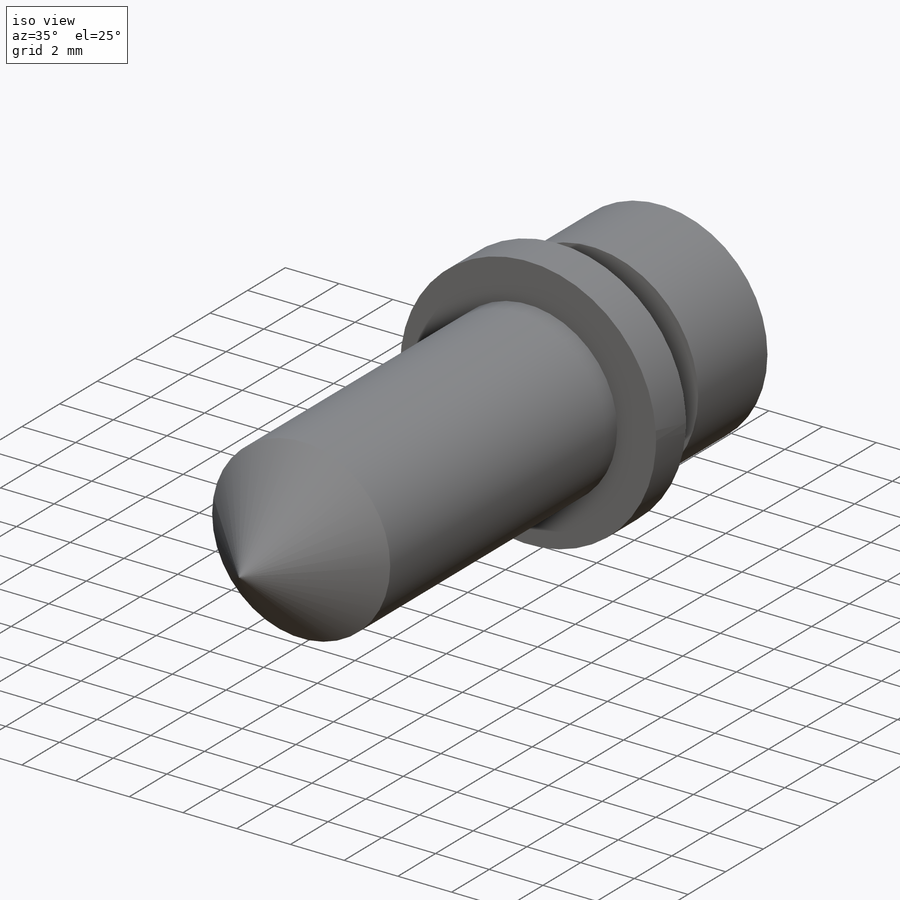
[diagram: iso view]
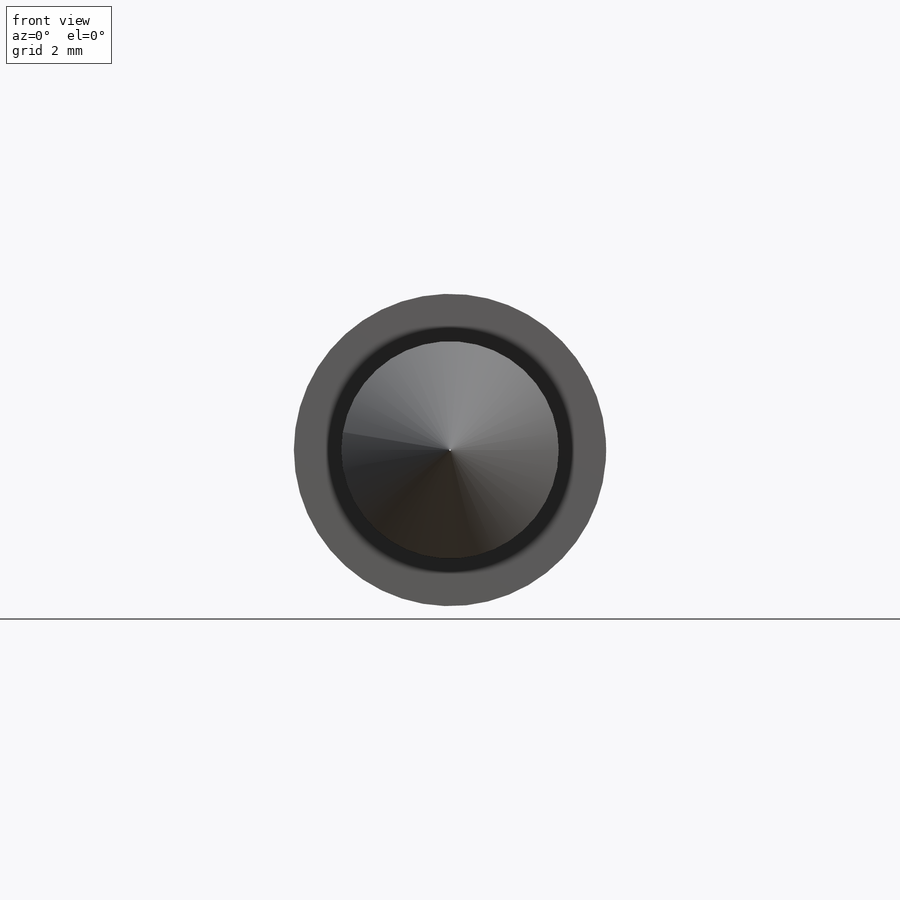
[diagram: front view]
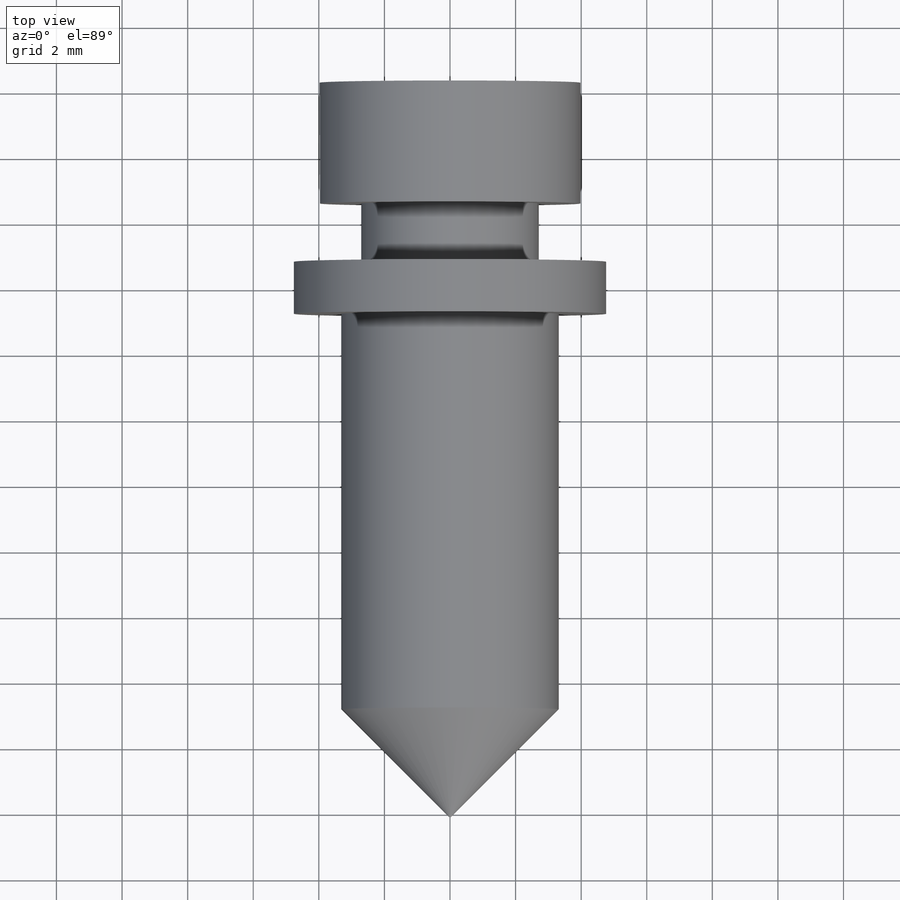
[diagram: top view]
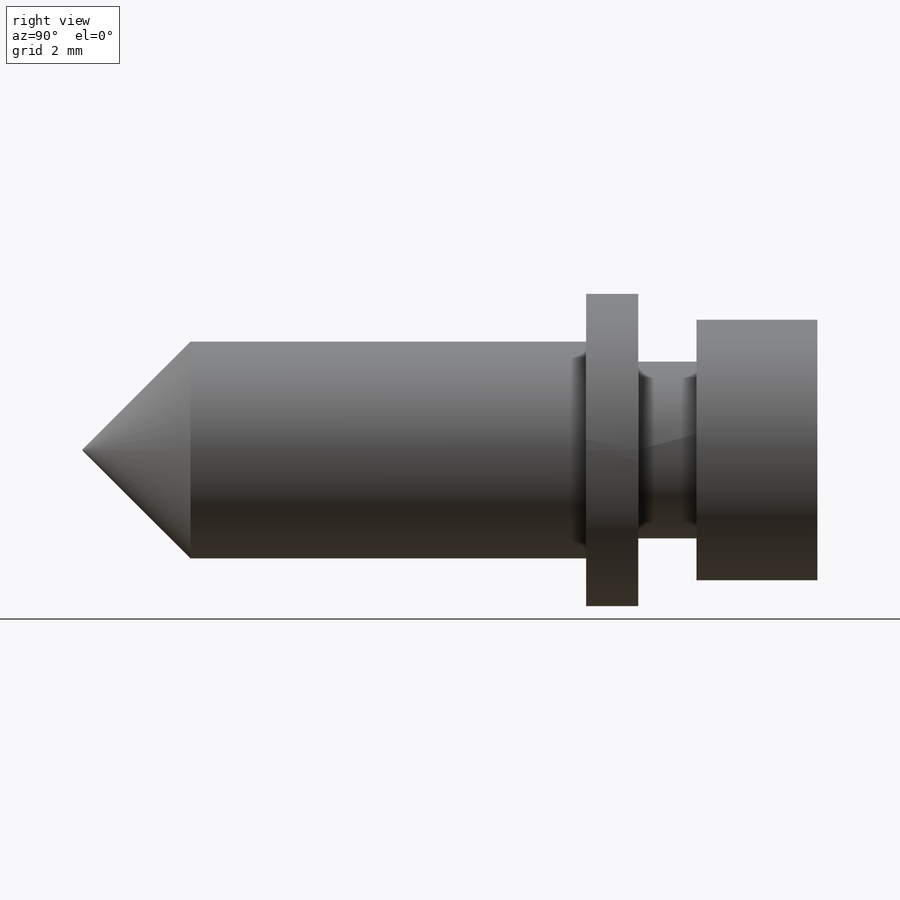
[diagram: right view]
SOLIDWORKS PART (.sldprt)
format: sldprt  version: not decoded by parser v0  size: 242,176 bytes
history: native  units: mm
features: sketch x9, extrude x3, cut_extrude x3, material x1, revolve x1, cut_revolve x1, plane x1, chamfer x1 (+11 scaffold rows collapsed)
feature tree (31):
  scaffold x11  (default folders/planes/origin — collapsed)
  material  "Brass"
  sketch  "Sketch1"  dims[D1=9.525mm]
  extrude  "Boss-Extrude1"  Depth=1.5875mm
  sketch  "Sketch2"  dims[D1=7.9502mm]
  extrude  "Boss-Extrude2"  Depth=5.461mm
  sketch  "Sketch3"  dims[D1=6.6294mm]
  extrude  "Boss-Extrude3"  Depth=12.065mm
  sketch  "Sketch4"
  sketch  "Sketch5"  dims[c1.D1=4.064mm c2.D1=45.0deg c2.D2=3.3147mm]
  revolve  "Revolve1"  Angle=360deg
  sketch  "Sketch6"  dims[D1=3.175mm]
  cut_extrude  "Cut-Extrude1"  Depth=19.05mm
  sketch  "Sketch10"  dims[D1=1.778mm D2=1.27mm]
  cut_revolve  "Cut-Revolve1"  Angle=360deg
  plane  "Plane2"
  sketch  "Sketch11"  dims[D1=~0.055005mm]
  cut_extrude  "Cut-Extrude3"  Depth=0.0254mm
  sketch  "Sketch9"  dims[D1=0.04mm]
  cut_extrude  "Cut-Extrude2"  [1 undecoded]
  chamfer  "Chamfer1"  Distance=1.27mm Angle=45deg
decode coverage: 16 of 18 modeling features carry decoded parameters
note: ~ marks probable driven/reference dimensions
note: 1 parameter value undecoded
note: suppression state not decoded; provenance and decode notes live in map.json
